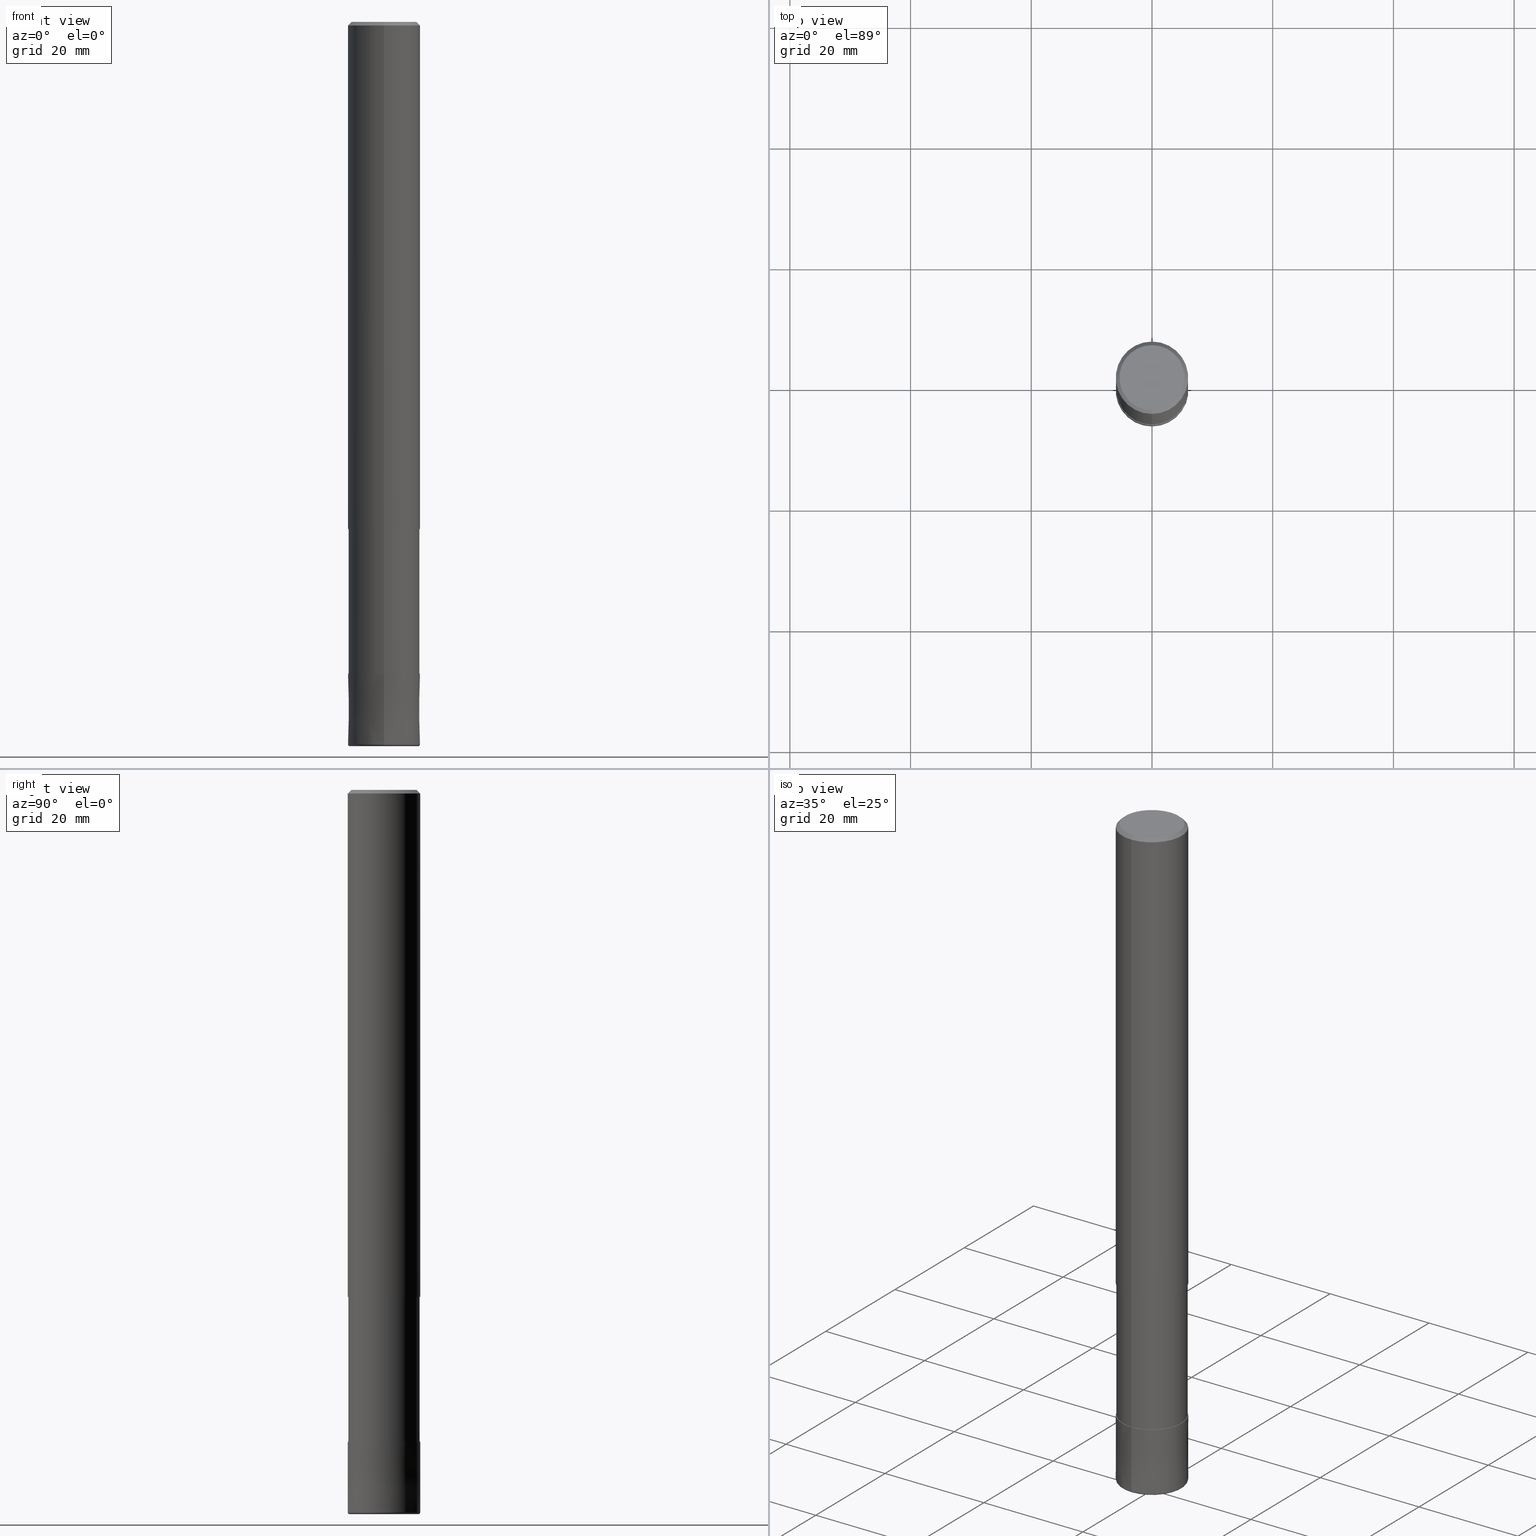
[diagram: canonical four-view strip — front | top / right | iso, engineering-drawing reading convention]
A machine part, canonical four-view strip (front | top / right | iso — engineering-drawing reading convention). The complete STEP part file that produces these views, byte-faithful:
ISO-10303-21;
HEADER;
FILE_DESCRIPTION(('no description'),'unknown implementation level');
FILE_NAME('CRRS4120-03-36-Huellk.stp','  ',('CIMSOURCE GmbH'),('CADClick - KiM GmbH - www.kimweb.de'),'unknown preprocess','ACIS','unknown authorization');
FILE_SCHEMA(('automotive_design'));
ENDSEC;
DATA;
#1=MECHANICAL_DESIGN_GEOMETRIC_PRESENTATION_REPRESENTATION(' ',(#14,#15,#16,#17,#18,#19,#20,#21,#22,#23,#24,#25,#26,#27,#28,#29,#30,#31,#32,#33,#34,#35,#36,#37,#38,#39,#40,#41,#42,#43,#44,#45,#46,#47,#48,#49,#50,#51,#52,#53,#54,#55,#56,#57,#58,#59,#60,#61,#62,#63,#64,#65,#66,#67,#68,#69,#70,#71,#72),#10);
#2=PRODUCT_DEFINITION_CONTEXT('',#73,'design');
#3=APPLICATION_PROTOCOL_DEFINITION('INTERNATIONAL STANDARD','automotive_design',1994,#73);
#4=PRODUCT_CATEGORY_RELATIONSHIP('NONE','NONE',#74,#75);
#5=SHAPE_DEFINITION_REPRESENTATION(#76,#77);
#6=PRODUCT_DEFINITION_CONTEXT('',#78,'design');
#7=APPLICATION_PROTOCOL_DEFINITION('INTERNATIONAL STANDARD','automotive_design',1994,#78);
#8=PRODUCT_CATEGORY_RELATIONSHIP('NONE','NONE',#79,#80);
#9=SHAPE_DEFINITION_REPRESENTATION(#81,#82);
#10= (GEOMETRIC_REPRESENTATION_CONTEXT(3)GLOBAL_UNCERTAINTY_ASSIGNED_CONTEXT((#85))GLOBAL_UNIT_ASSIGNED_CONTEXT((#87,#88,#89))REPRESENTATION_CONTEXT('NONE','WORKSPACE'));
#14=STYLED_ITEM('',(#91),#92);
#15=STYLED_ITEM('',(#93),#94);
#16=STYLED_ITEM('',(#95),#96);
#17=STYLED_ITEM('',(#97),#98);
#18=STYLED_ITEM('',(#99),#100);
#19=STYLED_ITEM('',(#101),#102);
#20=STYLED_ITEM('',(#103),#104);
#21=STYLED_ITEM('',(#105),#106);
#22=STYLED_ITEM('',(#107),#108);
#23=STYLED_ITEM('',(#109),#110);
#24=STYLED_ITEM('',(#111),#112);
#25=STYLED_ITEM('',(#113),#114);
#26=STYLED_ITEM('',(#115),#116);
#27=STYLED_ITEM('',(#117),#118);
#28=STYLED_ITEM('',(#119),#120);
#29=STYLED_ITEM('',(#121),#122);
#30=STYLED_ITEM('',(#123),#124);
#31=STYLED_ITEM('',(#125),#126);
#32=STYLED_ITEM('',(#127),#128);
#33=STYLED_ITEM('',(#129),#130);
#34=STYLED_ITEM('',(#131),#132);
#35=STYLED_ITEM('',(#133),#134);
#36=STYLED_ITEM('',(#135),#136);
#37=STYLED_ITEM('',(#137),#138);
#38=STYLED_ITEM('',(#139),#140);
#39=STYLED_ITEM('',(#141),#142);
#40=STYLED_ITEM('',(#143),#144);
#41=STYLED_ITEM('',(#145),#146);
#42=STYLED_ITEM('',(#147),#148);
#43=STYLED_ITEM('',(#149),#150);
#44=STYLED_ITEM('',(#151),#152);
#45=STYLED_ITEM('',(#153),#154);
#46=STYLED_ITEM('',(#155),#156);
#47=STYLED_ITEM('',(#157),#158);
#48=STYLED_ITEM('',(#159),#160);
#49=STYLED_ITEM('',(#161),#162);
#50=STYLED_ITEM('',(#163),#164);
#51=STYLED_ITEM('',(#165),#166);
#52=STYLED_ITEM('',(#167),#168);
#53=STYLED_ITEM('',(#169),#170);
#54=STYLED_ITEM('',(#171),#172);
#55=STYLED_ITEM('',(#173),#174);
#56=STYLED_ITEM('',(#175),#176);
#57=STYLED_ITEM('',(#177),#178);
#58=STYLED_ITEM('',(#179),#180);
#59=STYLED_ITEM('',(#181),#182);
#60=STYLED_ITEM('',(#183),#184);
#61=STYLED_ITEM('',(#185),#186);
#62=STYLED_ITEM('',(#187),#188);
#63=STYLED_ITEM('',(#189),#190);
#64=STYLED_ITEM('',(#191),#192);
#65=STYLED_ITEM('',(#193),#194);
#66=STYLED_ITEM('',(#195),#196);
#67=STYLED_ITEM('',(#197),#198);
#68=STYLED_ITEM('',(#199),#200);
#69=STYLED_ITEM('',(#201),#202);
#70=STYLED_ITEM('',(#203),#204);
#71=STYLED_ITEM('',(#205),#206);
#72=STYLED_ITEM('',(#207),#208);
#73=APPLICATION_CONTEXT(' ');
#74=PRODUCT_CATEGORY('part','NONE');
#75=PRODUCT_RELATED_PRODUCT_CATEGORY('detail',' ',(#209));
#76=PRODUCT_DEFINITION_SHAPE('NONE','NONE',#210);
#77=ADVANCED_BREP_SHAPE_REPRESENTATION('1',(#146,#211),#10);
#78=APPLICATION_CONTEXT(' ');
#79=PRODUCT_CATEGORY('part','NONE');
#80=PRODUCT_RELATED_PRODUCT_CATEGORY('detail',' ',(#212));
#81=PRODUCT_DEFINITION_SHAPE('NONE','NONE',#213);
#82=ADVANCED_BREP_SHAPE_REPRESENTATION('2',(#140,#214),#10);
#85=UNCERTAINTY_MEASURE_WITH_UNIT(LENGTH_MEASURE(1.0E-006),#87,'','');
#87= (CONVERSION_BASED_UNIT('MILLIMETRE',#217)LENGTH_UNIT()NAMED_UNIT(#220));
#88= (NAMED_UNIT(#222)PLANE_ANGLE_UNIT()SI_UNIT($,.RADIAN.));
#89= (NAMED_UNIT(#222)SOLID_ANGLE_UNIT()SI_UNIT($,.STERADIAN.));
#91=PRESENTATION_STYLE_ASSIGNMENT((#228));
#92=VERTEX_POINT('',#229);
#93=PRESENTATION_STYLE_ASSIGNMENT((#230));
#94=EDGE_CURVE('',#116,#114,#231,.T.);
#95=PRESENTATION_STYLE_ASSIGNMENT((#232));
#96=EDGE_CURVE('',#172,#178,#233,.T.);
#97=PRESENTATION_STYLE_ASSIGNMENT((#234));
#98=EDGE_CURVE('',#200,#126,#235,.T.);
#99=PRESENTATION_STYLE_ASSIGNMENT((#236));
#100=EDGE_CURVE('',#200,#182,#237,.T.);
#101=PRESENTATION_STYLE_ASSIGNMENT((#238));
#102=EDGE_CURVE('',#188,#200,#239,.T.);
#103=PRESENTATION_STYLE_ASSIGNMENT((#240));
#104=VERTEX_POINT('',#241);
#105=PRESENTATION_STYLE_ASSIGNMENT((#242));
#106=ADVANCED_FACE('',(#243,#244),#245,.T.);
#107=PRESENTATION_STYLE_ASSIGNMENT((#246));
#108=EDGE_CURVE('',#164,#172,#247,.T.);
#109=PRESENTATION_STYLE_ASSIGNMENT((#248));
#110=EDGE_CURVE('',#134,#172,#249,.T.);
#111=PRESENTATION_STYLE_ASSIGNMENT((#250));
#112=EDGE_CURVE('',#162,#188,#251,.T.);
#113=PRESENTATION_STYLE_ASSIGNMENT((#252));
#114=VERTEX_POINT('',#253);
#115=PRESENTATION_STYLE_ASSIGNMENT((#254));
#116=VERTEX_POINT('',#255);
#117=PRESENTATION_STYLE_ASSIGNMENT((#256));
#118=EDGE_CURVE('',#182,#200,#257,.T.);
#119=PRESENTATION_STYLE_ASSIGNMENT((#258));
#120=ADVANCED_FACE('',(#259),#260,.T.);
#121=PRESENTATION_STYLE_ASSIGNMENT((#261));
#122=ADVANCED_FACE('',(#262),#263,.T.);
#123=PRESENTATION_STYLE_ASSIGNMENT((#264));
#124=EDGE_CURVE('',#92,#116,#265,.T.);
#125=PRESENTATION_STYLE_ASSIGNMENT((#266));
#126=VERTEX_POINT('',#267);
#127=PRESENTATION_STYLE_ASSIGNMENT((#268));
#128=ADVANCED_FACE('',(#269),#270,.T.);
#129=PRESENTATION_STYLE_ASSIGNMENT((#271));
#130=ADVANCED_FACE('',(#272),#273,.T.);
#131=PRESENTATION_STYLE_ASSIGNMENT((#274));
#132=ADVANCED_FACE('',(#275),#276,.T.);
#133=PRESENTATION_STYLE_ASSIGNMENT((#277));
#134=VERTEX_POINT('',#278);
#135=PRESENTATION_STYLE_ASSIGNMENT((#279));
#136=EDGE_CURVE('',#104,#134,#280,.T.);
#137=PRESENTATION_STYLE_ASSIGNMENT((#281));
#138=EDGE_CURVE('',#134,#104,#282,.T.);
#139=PRESENTATION_STYLE_ASSIGNMENT((#283));
#140=MANIFOLD_SOLID_BREP('2',#284);
#141=PRESENTATION_STYLE_ASSIGNMENT((#285));
#142=EDGE_CURVE('',#164,#170,#286,.T.);
#143=PRESENTATION_STYLE_ASSIGNMENT((#287));
#144=EDGE_CURVE('',#178,#172,#288,.T.);
#145=PRESENTATION_STYLE_ASSIGNMENT((#289));
#146=MANIFOLD_SOLID_BREP('1',#290);
#147=PRESENTATION_STYLE_ASSIGNMENT((#291));
#148=ADVANCED_FACE('',(#292),#293,.T.);
#149=PRESENTATION_STYLE_ASSIGNMENT((#294));
#150=VERTEX_POINT('',#295);
#151=PRESENTATION_STYLE_ASSIGNMENT((#296));
#152=EDGE_CURVE('',#204,#92,#297,.T.);
#153=PRESENTATION_STYLE_ASSIGNMENT((#298));
#154=EDGE_CURVE('',#178,#104,#299,.T.);
#155=PRESENTATION_STYLE_ASSIGNMENT((#300));
#156=EDGE_CURVE('',#170,#164,#301,.T.);
#157=PRESENTATION_STYLE_ASSIGNMENT((#302));
#158=ADVANCED_FACE('',(#303),#304,.T.);
#159=PRESENTATION_STYLE_ASSIGNMENT((#305));
#160=ADVANCED_FACE('',(#306),#307,.T.);
#161=PRESENTATION_STYLE_ASSIGNMENT((#308));
#162=VERTEX_POINT('',#309);
#163=PRESENTATION_STYLE_ASSIGNMENT((#310));
#164=VERTEX_POINT('',#311);
#165=PRESENTATION_STYLE_ASSIGNMENT((#312));
#166=ADVANCED_FACE('',(#313),#314,.T.);
#167=PRESENTATION_STYLE_ASSIGNMENT((#315));
#168=ADVANCED_FACE('',(#316),#317,.T.);
#169=PRESENTATION_STYLE_ASSIGNMENT((#318));
#170=VERTEX_POINT('',#319);
#171=PRESENTATION_STYLE_ASSIGNMENT((#320));
#172=VERTEX_POINT('',#321);
#173=PRESENTATION_STYLE_ASSIGNMENT((#322));
#174=ADVANCED_FACE('',(#323),#324,.T.);
#175=PRESENTATION_STYLE_ASSIGNMENT((#325));
#176=EDGE_CURVE('',#116,#92,#326,.T.);
#177=PRESENTATION_STYLE_ASSIGNMENT((#327));
#178=VERTEX_POINT('',#328);
#179=PRESENTATION_STYLE_ASSIGNMENT((#329));
#180=EDGE_CURVE('',#204,#114,#330,.T.);
#181=PRESENTATION_STYLE_ASSIGNMENT((#331));
#182=VERTEX_POINT('',#332);
#183=PRESENTATION_STYLE_ASSIGNMENT((#333));
#184=EDGE_CURVE('',#182,#162,#334,.T.);
#185=PRESENTATION_STYLE_ASSIGNMENT((#335));
#186=EDGE_CURVE('',#150,#182,#336,.T.);
#187=PRESENTATION_STYLE_ASSIGNMENT((#337));
#188=VERTEX_POINT('',#338);
#189=PRESENTATION_STYLE_ASSIGNMENT((#339));
#190=ADVANCED_FACE('',(#340),#341,.T.);
#191=PRESENTATION_STYLE_ASSIGNMENT((#342));
#192=EDGE_CURVE('',#126,#150,#343,.T.);
#193=PRESENTATION_STYLE_ASSIGNMENT((#344));
#194=EDGE_CURVE('',#188,#162,#345,.T.);
#195=PRESENTATION_STYLE_ASSIGNMENT((#346));
#196=EDGE_CURVE('',#178,#170,#347,.T.);
#197=PRESENTATION_STYLE_ASSIGNMENT((#348));
#198=EDGE_CURVE('',#114,#204,#349,.T.);
#199=PRESENTATION_STYLE_ASSIGNMENT((#350));
#200=VERTEX_POINT('',#351);
#201=PRESENTATION_STYLE_ASSIGNMENT((#352));
#202=ADVANCED_FACE('',(#353),#354,.T.);
#203=PRESENTATION_STYLE_ASSIGNMENT((#355));
#204=VERTEX_POINT('',#356);
#205=PRESENTATION_STYLE_ASSIGNMENT((#357));
#206=ADVANCED_FACE('',(#358),#359,.T.);
#207=PRESENTATION_STYLE_ASSIGNMENT((#360));
#208=EDGE_CURVE('',#150,#126,#361,.T.);
#209=PRODUCT('1','1','PART-1-DESC',(#362));
#210=PRODUCT_DEFINITION('NONE','NONE',#363,#2);
#211=AXIS2_PLACEMENT_3D('',#364,#365,#366);
#212=PRODUCT('2','2','PART-2-DESC',(#367));
#213=PRODUCT_DEFINITION('NONE','NONE',#368,#6);
#214=AXIS2_PLACEMENT_3D('',#369,#370,#371);
#217=LENGTH_MEASURE_WITH_UNIT(LENGTH_MEASURE(1.0),#372);
#220=DIMENSIONAL_EXPONENTS(1.0,0.0,0.0,0.0,0.0,0.0,0.0);
#222=DIMENSIONAL_EXPONENTS(0.0,0.0,0.0,0.0,0.0,0.0,0.0);
#228=POINT_STYLE(' ',#373,POSITIVE_LENGTH_MEASURE(1.0E-006),#374);
#229=CARTESIAN_POINT('',(0.0,5.90995,-108.0));
#230=CURVE_STYLE('',#375,POSITIVE_LENGTH_MEASURE(1.0E-006),#376);
#231=LINE('',#377,#378);
#232=CURVE_STYLE('',#379,POSITIVE_LENGTH_MEASURE(1.0E-006),#380);
#233=CIRCLE('',#381,6.0);
#234=CURVE_STYLE('',#382,POSITIVE_LENGTH_MEASURE(1.0E-006),#383);
#235=LINE('',#384,#385);
#236=CURVE_STYLE('',#386,POSITIVE_LENGTH_MEASURE(1.0E-006),#387);
#237=CIRCLE('',#388,6.0);
#238=CURVE_STYLE('',#389,POSITIVE_LENGTH_MEASURE(1.0E-006),#390);
#239=LINE('',#391,#392);
#240=POINT_STYLE(' ',#393,POSITIVE_LENGTH_MEASURE(1.0E-006),#394);
#241=CARTESIAN_POINT('',(6.98025621678755E-016,-5.7,-120.0));
#242=SURFACE_STYLE_USAGE(.BOTH.,#395);
#243=FACE_OUTER_BOUND('',#396,.T.);
#244=FACE_BOUND('',#397,.T.);
#245=PLANE('',#398);
#246=CURVE_STYLE('',#399,POSITIVE_LENGTH_MEASURE(1.0E-006),#400);
#247=LINE('',#401,#402);
#248=CURVE_STYLE('',#403,POSITIVE_LENGTH_MEASURE(1.0E-006),#404);
#249=CIRCLE('',#405,0.300000000000002);
#250=CURVE_STYLE('',#406,POSITIVE_LENGTH_MEASURE(1.0E-006),#407);
#251=CIRCLE('',#408,6.0);
#252=POINT_STYLE(' ',#409,POSITIVE_LENGTH_MEASURE(1.0E-006),#410);
#253=CARTESIAN_POINT('',(7.23736232077256E-016,-5.90995,-84.0));
#254=POINT_STYLE(' ',#411,POSITIVE_LENGTH_MEASURE(1.0E-006),#412);
#255=CARTESIAN_POINT('',(7.23736232077256E-016,-5.90995,-108.0));
#256=CURVE_STYLE('',#413,POSITIVE_LENGTH_MEASURE(1.0E-006),#414);
#257=CIRCLE('',#415,6.0);
#258=SURFACE_STYLE_USAGE(.BOTH.,#416);
#259=FACE_OUTER_BOUND('',#417,.T.);
#260=PLANE('',#418);
#261=SURFACE_STYLE_USAGE(.BOTH.,#419);
#262=FACE_OUTER_BOUND('',#420,.T.);
#263=CONICAL_SURFACE('',#421,5.7,0.785398163397453);
#264=CURVE_STYLE('',#422,POSITIVE_LENGTH_MEASURE(1.0E-006),#423);
#265=CIRCLE('',#424,5.90995);
#266=POINT_STYLE(' ',#425,POSITIVE_LENGTH_MEASURE(1.0E-006),#426);
#267=CARTESIAN_POINT('',(6.61287431064084E-016,-5.4,0.0));
#268=SURFACE_STYLE_USAGE(.BOTH.,#427);
#269=FACE_OUTER_BOUND('',#428,.T.);
#270=CONICAL_SURFACE('',#429,5.99995,8.5470085467805E-006);
#271=SURFACE_STYLE_USAGE(.BOTH.,#430);
#272=FACE_OUTER_BOUND('',#431,.T.);
#273=TOROIDAL_SURFACE('',#432,5.7,0.300000000000002);
#274=SURFACE_STYLE_USAGE(.BOTH.,#433);
#275=FACE_OUTER_BOUND('',#434,.T.);
#276=PLANE('',#435);
#277=POINT_STYLE(' ',#436,POSITIVE_LENGTH_MEASURE(1.0E-006),#437);
#278=CARTESIAN_POINT('',(0.0,5.7,-120.0));
#279=CURVE_STYLE('',#438,POSITIVE_LENGTH_MEASURE(1.0E-006),#439);
#280=CIRCLE('',#440,5.7);
#281=CURVE_STYLE('',#441,POSITIVE_LENGTH_MEASURE(1.0E-006),#442);
#282=CIRCLE('',#443,5.7);
#283=SURFACE_STYLE_USAGE(.BOTH.,#444);
#284=CLOSED_SHELL('',(#190,#148,#202,#128,#130,#132));
#285=CURVE_STYLE('',#445,POSITIVE_LENGTH_MEASURE(1.0E-006),#446);
#286=CIRCLE('',#447,5.9999);
#287=CURVE_STYLE('',#448,POSITIVE_LENGTH_MEASURE(1.0E-006),#449);
#288=CIRCLE('',#450,6.0);
#289=SURFACE_STYLE_USAGE(.BOTH.,#451);
#290=CLOSED_SHELL('',(#166,#158,#206,#106,#160,#122,#174,#168,#120));
#291=SURFACE_STYLE_USAGE(.BOTH.,#452);
#292=FACE_OUTER_BOUND('',#453,.T.);
#293=CONICAL_SURFACE('',#454,5.99995,8.5470085467805E-006);
#294=POINT_STYLE(' ',#455,POSITIVE_LENGTH_MEASURE(1.0E-006),#456);
#295=CARTESIAN_POINT('',(0.0,5.4,0.0));
#296=CURVE_STYLE('',#457,POSITIVE_LENGTH_MEASURE(1.0E-006),#458);
#297=LINE('',#459,#460);
#298=CURVE_STYLE('',#461,POSITIVE_LENGTH_MEASURE(1.0E-006),#462);
#299=CIRCLE('',#463,0.300000000000002);
#300=CURVE_STYLE('',#464,POSITIVE_LENGTH_MEASURE(1.0E-006),#465);
#301=CIRCLE('',#466,5.9999);
#302=SURFACE_STYLE_USAGE(.BOTH.,#467);
#303=FACE_OUTER_BOUND('',#468,.T.);
#304=CYLINDRICAL_SURFACE('',#469,6.0);
#305=SURFACE_STYLE_USAGE(.BOTH.,#470);
#306=FACE_OUTER_BOUND('',#471,.T.);
#307=PLANE('',#472);
#308=POINT_STYLE(' ',#473,POSITIVE_LENGTH_MEASURE(1.0E-006),#474);
#309=CARTESIAN_POINT('',(0.0,6.0,-84.0));
#310=POINT_STYLE(' ',#475,POSITIVE_LENGTH_MEASURE(1.0E-006),#476);
#311=CARTESIAN_POINT('',(0.0,5.9999,-108.0));
#312=SURFACE_STYLE_USAGE(.BOTH.,#477);
#313=FACE_OUTER_BOUND('',#478,.T.);
#314=CYLINDRICAL_SURFACE('',#479,5.90995);
#315=SURFACE_STYLE_USAGE(.BOTH.,#480);
#316=FACE_OUTER_BOUND('',#481,.T.);
#317=CYLINDRICAL_SURFACE('',#482,5.90995);
#318=POINT_STYLE(' ',#483,POSITIVE_LENGTH_MEASURE(1.0E-006),#484);
#319=CARTESIAN_POINT('',(7.34751566229888E-016,-5.9999,-108.0));
#320=POINT_STYLE(' ',#485,POSITIVE_LENGTH_MEASURE(1.0E-006),#486);
#321=CARTESIAN_POINT('',(0.0,6.0,-119.7));
#322=SURFACE_STYLE_USAGE(.BOTH.,#487);
#323=FACE_OUTER_BOUND('',#488,.T.);
#324=CYLINDRICAL_SURFACE('',#489,6.0);
#325=CURVE_STYLE('',#490,POSITIVE_LENGTH_MEASURE(1.0E-006),#491);
#326=CIRCLE('',#492,5.90995);
#327=POINT_STYLE(' ',#493,POSITIVE_LENGTH_MEASURE(1.0E-006),#494);
#328=CARTESIAN_POINT('',(7.34763812293427E-016,-6.0,-119.7));
#329=CURVE_STYLE('',#495,POSITIVE_LENGTH_MEASURE(1.0E-006),#496);
#330=CIRCLE('',#497,5.90995);
#331=POINT_STYLE(' ',#498,POSITIVE_LENGTH_MEASURE(1.0E-006),#499);
#332=CARTESIAN_POINT('',(0.0,6.0,-0.599999999999994));
#333=CURVE_STYLE('',#500,POSITIVE_LENGTH_MEASURE(1.0E-006),#501);
#334=LINE('',#502,#503);
#335=CURVE_STYLE('',#504,POSITIVE_LENGTH_MEASURE(1.0E-006),#505);
#336=LINE('',#506,#507);
#337=POINT_STYLE(' ',#508,POSITIVE_LENGTH_MEASURE(1.0E-006),#509);
#338=CARTESIAN_POINT('',(7.34763812293426E-016,-6.0,-84.0));
#339=SURFACE_STYLE_USAGE(.BOTH.,#510);
#340=FACE_OUTER_BOUND('',#511,.T.);
#341=TOROIDAL_SURFACE('',#512,5.7,0.300000000000002);
#342=CURVE_STYLE('',#513,POSITIVE_LENGTH_MEASURE(1.0E-006),#514);
#343=CIRCLE('',#515,5.4);
#344=CURVE_STYLE('',#516,POSITIVE_LENGTH_MEASURE(1.0E-006),#517);
#345=CIRCLE('',#518,6.0);
#346=CURVE_STYLE('',#519,POSITIVE_LENGTH_MEASURE(1.0E-006),#520);
#347=LINE('',#521,#522);
#348=CURVE_STYLE('',#523,POSITIVE_LENGTH_MEASURE(1.0E-006),#524);
#349=CIRCLE('',#525,5.90995);
#350=POINT_STYLE(' ',#526,POSITIVE_LENGTH_MEASURE(1.0E-006),#527);
#351=CARTESIAN_POINT('',(7.34763812293426E-016,-6.0,-0.599999999999994));
#352=SURFACE_STYLE_USAGE(.BOTH.,#528);
#353=FACE_OUTER_BOUND('',#529,.T.);
#354=PLANE('',#530);
#355=POINT_STYLE(' ',#531,POSITIVE_LENGTH_MEASURE(1.0E-006),#532);
#356=CARTESIAN_POINT('',(0.0,5.90995,-84.0));
#357=SURFACE_STYLE_USAGE(.BOTH.,#533);
#358=FACE_OUTER_BOUND('',#534,.T.);
#359=CONICAL_SURFACE('',#535,5.7,0.785398163397453);
#360=CURVE_STYLE('',#536,POSITIVE_LENGTH_MEASURE(1.0E-006),#537);
#361=CIRCLE('',#538,5.4);
#362=PRODUCT_CONTEXT('',#73,'mechanical');
#363=PRODUCT_DEFINITION_FORMATION_WITH_SPECIFIED_SOURCE(' ','NONE',#209,.NOT_KNOWN.);
#364=CARTESIAN_POINT('',(0.0,0.0,0.0));
#365=DIRECTION('',(0.0,0.0,1.0));
#366=DIRECTION('',(1.0,0.0,0.0));
#367=PRODUCT_CONTEXT('',#78,'mechanical');
#368=PRODUCT_DEFINITION_FORMATION_WITH_SPECIFIED_SOURCE(' ','NONE',#212,.NOT_KNOWN.);
#369=CARTESIAN_POINT('',(0.0,0.0,0.0));
#370=DIRECTION('',(0.0,0.0,1.0));
#371=DIRECTION('',(1.0,0.0,0.0));
#372= (NAMED_UNIT(#220)LENGTH_UNIT()SI_UNIT(.MILLI.,.METRE.));
#373=PRE_DEFINED_MARKER('');
#374=COLOUR_RGB('',0.498039215803146,0.498039215803146,0.498039215803146);
#375=DRAUGHTING_PRE_DEFINED_CURVE_FONT('continuous');
#376=COLOUR_RGB('',0.498039215803146,0.498039215803146,0.498039215803146);
#377=CARTESIAN_POINT('',(7.23736232077256E-016,-5.90995,-96.0));
#378=VECTOR('',#540,1.0);
#379=DRAUGHTING_PRE_DEFINED_CURVE_FONT('continuous');
#380=COLOUR_RGB('',0.800000011920929,0.800000011920929,0.800000011920929);
#381=AXIS2_PLACEMENT_3D('',#541,#542,#543);
#382=DRAUGHTING_PRE_DEFINED_CURVE_FONT('continuous');
#383=COLOUR_RGB('',0.498039215803146,0.498039215803146,0.498039215803146);
#384=CARTESIAN_POINT('',(6.98025621678755E-016,-5.7,-0.299999999999997));
#385=VECTOR('',#544,1.0);
#386=DRAUGHTING_PRE_DEFINED_CURVE_FONT('continuous');
#387=COLOUR_RGB('',0.498039215803146,0.498039215803146,0.498039215803146);
#388=AXIS2_PLACEMENT_3D('',#545,#546,#547);
#389=DRAUGHTING_PRE_DEFINED_CURVE_FONT('continuous');
#390=COLOUR_RGB('',0.498039215803146,0.498039215803146,0.498039215803146);
#391=CARTESIAN_POINT('',(7.34763812293426E-016,-6.0,-42.3));
#392=VECTOR('',#548,1.0);
#393=PRE_DEFINED_MARKER('');
#394=COLOUR_RGB('',0.800000011920929,0.800000011920929,0.800000011920929);
#395=SURFACE_SIDE_STYLE('',(#549));
#396=EDGE_LOOP('',(#550,#551));
#397=EDGE_LOOP('',(#552,#553));
#398=AXIS2_PLACEMENT_3D('',#554,#555,#556);
#399=DRAUGHTING_PRE_DEFINED_CURVE_FONT('continuous');
#400=COLOUR_RGB('',0.800000011920929,0.800000011920929,0.800000011920929);
#401=CARTESIAN_POINT('',(-7.34757689261657E-016,5.99995,-113.85));
#402=VECTOR('',#557,1.0);
#403=DRAUGHTING_PRE_DEFINED_CURVE_FONT('continuous');
#404=COLOUR_RGB('',0.800000011920929,0.800000011920929,0.800000011920929);
#405=AXIS2_PLACEMENT_3D('',#558,#559,#560);
#406=DRAUGHTING_PRE_DEFINED_CURVE_FONT('continuous');
#407=COLOUR_RGB('',0.498039215803146,0.498039215803146,0.498039215803146);
#408=AXIS2_PLACEMENT_3D('',#561,#562,#563);
#409=PRE_DEFINED_MARKER('');
#410=COLOUR_RGB('',0.498039215803146,0.498039215803146,0.498039215803146);
#411=PRE_DEFINED_MARKER('');
#412=COLOUR_RGB('',0.498039215803146,0.498039215803146,0.498039215803146);
#413=DRAUGHTING_PRE_DEFINED_CURVE_FONT('continuous');
#414=COLOUR_RGB('',0.498039215803146,0.498039215803146,0.498039215803146);
#415=AXIS2_PLACEMENT_3D('',#564,#565,#566);
#416=SURFACE_SIDE_STYLE('',(#567));
#417=EDGE_LOOP('',(#568,#569));
#418=AXIS2_PLACEMENT_3D('',#570,#571,#572);
#419=SURFACE_SIDE_STYLE('',(#573));
#420=EDGE_LOOP('',(#574,#575,#576,#577));
#421=AXIS2_PLACEMENT_3D('',#578,#579,#580);
#422=DRAUGHTING_PRE_DEFINED_CURVE_FONT('continuous');
#423=COLOUR_RGB('',0.498039215803146,0.498039215803146,0.498039215803146);
#424=AXIS2_PLACEMENT_3D('',#581,#582,#583);
#425=PRE_DEFINED_MARKER('');
#426=COLOUR_RGB('',0.498039215803146,0.498039215803146,0.498039215803146);
#427=SURFACE_SIDE_STYLE('',(#584));
#428=EDGE_LOOP('',(#585,#586,#587,#588));
#429=AXIS2_PLACEMENT_3D('',#589,#590,#591);
#430=SURFACE_SIDE_STYLE('',(#592));
#431=EDGE_LOOP('',(#593,#594,#595,#596));
#432=AXIS2_PLACEMENT_3D('',#597,#598,#599);
#433=SURFACE_SIDE_STYLE('',(#600));
#434=EDGE_LOOP('',(#601,#602));
#435=AXIS2_PLACEMENT_3D('',#603,#604,#605);
#436=PRE_DEFINED_MARKER('');
#437=COLOUR_RGB('',0.800000011920929,0.800000011920929,0.800000011920929);
#438=DRAUGHTING_PRE_DEFINED_CURVE_FONT('continuous');
#439=COLOUR_RGB('',0.800000011920929,0.800000011920929,0.800000011920929);
#440=AXIS2_PLACEMENT_3D('',#606,#607,#608);
#441=DRAUGHTING_PRE_DEFINED_CURVE_FONT('continuous');
#442=COLOUR_RGB('',0.800000011920929,0.800000011920929,0.800000011920929);
#443=AXIS2_PLACEMENT_3D('',#609,#610,#611);
#444=SURFACE_SIDE_STYLE('',(#612));
#445=DRAUGHTING_PRE_DEFINED_CURVE_FONT('continuous');
#446=COLOUR_RGB('',0.800000011920929,0.800000011920929,0.800000011920929);
#447=AXIS2_PLACEMENT_3D('',#613,#614,#615);
#448=DRAUGHTING_PRE_DEFINED_CURVE_FONT('continuous');
#449=COLOUR_RGB('',0.800000011920929,0.800000011920929,0.800000011920929);
#450=AXIS2_PLACEMENT_3D('',#616,#617,#618);
#451=SURFACE_SIDE_STYLE('',(#619));
#452=SURFACE_SIDE_STYLE('',(#620));
#453=EDGE_LOOP('',(#621,#622,#623,#624));
#454=AXIS2_PLACEMENT_3D('',#625,#626,#627);
#455=PRE_DEFINED_MARKER('');
#456=COLOUR_RGB('',0.498039215803146,0.498039215803146,0.498039215803146);
#457=DRAUGHTING_PRE_DEFINED_CURVE_FONT('continuous');
#458=COLOUR_RGB('',0.498039215803146,0.498039215803146,0.498039215803146);
#459=CARTESIAN_POINT('',(-7.23736232077256E-016,5.90995,-96.0));
#460=VECTOR('',#628,1.0);
#461=DRAUGHTING_PRE_DEFINED_CURVE_FONT('continuous');
#462=COLOUR_RGB('',0.800000011920929,0.800000011920929,0.800000011920929);
#463=AXIS2_PLACEMENT_3D('',#629,#630,#631);
#464=DRAUGHTING_PRE_DEFINED_CURVE_FONT('continuous');
#465=COLOUR_RGB('',0.800000011920929,0.800000011920929,0.800000011920929);
#466=AXIS2_PLACEMENT_3D('',#632,#633,#634);
#467=SURFACE_SIDE_STYLE('',(#635));
#468=EDGE_LOOP('',(#636,#637,#638,#639));
#469=AXIS2_PLACEMENT_3D('',#640,#641,#642);
#470=SURFACE_SIDE_STYLE('',(#643));
#471=EDGE_LOOP('',(#644,#645));
#472=AXIS2_PLACEMENT_3D('',#646,#647,#648);
#473=PRE_DEFINED_MARKER('');
#474=COLOUR_RGB('',0.498039215803146,0.498039215803146,0.498039215803146);
#475=PRE_DEFINED_MARKER('');
#476=COLOUR_RGB('',0.800000011920929,0.800000011920929,0.800000011920929);
#477=SURFACE_SIDE_STYLE('',(#649));
#478=EDGE_LOOP('',(#650,#651,#652,#653));
#479=AXIS2_PLACEMENT_3D('',#654,#655,#656);
#480=SURFACE_SIDE_STYLE('',(#657));
#481=EDGE_LOOP('',(#658,#659,#660,#661));
#482=AXIS2_PLACEMENT_3D('',#662,#663,#664);
#483=PRE_DEFINED_MARKER('');
#484=COLOUR_RGB('',0.800000011920929,0.800000011920929,0.800000011920929);
#485=PRE_DEFINED_MARKER('');
#486=COLOUR_RGB('',0.800000011920929,0.800000011920929,0.800000011920929);
#487=SURFACE_SIDE_STYLE('',(#665));
#488=EDGE_LOOP('',(#666,#667,#668,#669));
#489=AXIS2_PLACEMENT_3D('',#670,#671,#672);
#490=DRAUGHTING_PRE_DEFINED_CURVE_FONT('continuous');
#491=COLOUR_RGB('',0.498039215803146,0.498039215803146,0.498039215803146);
#492=AXIS2_PLACEMENT_3D('',#673,#674,#675);
#493=PRE_DEFINED_MARKER('');
#494=COLOUR_RGB('',0.800000011920929,0.800000011920929,0.800000011920929);
#495=DRAUGHTING_PRE_DEFINED_CURVE_FONT('continuous');
#496=COLOUR_RGB('',0.498039215803146,0.498039215803146,0.498039215803146);
#497=AXIS2_PLACEMENT_3D('',#676,#677,#678);
#498=PRE_DEFINED_MARKER('');
#499=COLOUR_RGB('',0.498039215803146,0.498039215803146,0.498039215803146);
#500=DRAUGHTING_PRE_DEFINED_CURVE_FONT('continuous');
#501=COLOUR_RGB('',0.498039215803146,0.498039215803146,0.498039215803146);
#502=CARTESIAN_POINT('',(-7.34763812293426E-016,6.0,-42.3));
#503=VECTOR('',#679,1.0);
#504=DRAUGHTING_PRE_DEFINED_CURVE_FONT('continuous');
#505=COLOUR_RGB('',0.498039215803146,0.498039215803146,0.498039215803146);
#506=CARTESIAN_POINT('',(-6.98025621678755E-016,5.7,-0.299999999999997));
#507=VECTOR('',#680,1.0);
#508=PRE_DEFINED_MARKER('');
#509=COLOUR_RGB('',0.498039215803146,0.498039215803146,0.498039215803146);
#510=SURFACE_SIDE_STYLE('',(#681));
#511=EDGE_LOOP('',(#682,#683,#684,#685));
#512=AXIS2_PLACEMENT_3D('',#686,#687,#688);
#513=DRAUGHTING_PRE_DEFINED_CURVE_FONT('continuous');
#514=COLOUR_RGB('',0.498039215803146,0.498039215803146,0.498039215803146);
#515=AXIS2_PLACEMENT_3D('',#689,#690,#691);
#516=DRAUGHTING_PRE_DEFINED_CURVE_FONT('continuous');
#517=COLOUR_RGB('',0.498039215803146,0.498039215803146,0.498039215803146);
#518=AXIS2_PLACEMENT_3D('',#692,#693,#694);
#519=DRAUGHTING_PRE_DEFINED_CURVE_FONT('continuous');
#520=COLOUR_RGB('',0.800000011920929,0.800000011920929,0.800000011920929);
#521=CARTESIAN_POINT('',(7.34757689261657E-016,-5.99995,-113.85));
#522=VECTOR('',#695,1.0);
#523=DRAUGHTING_PRE_DEFINED_CURVE_FONT('continuous');
#524=COLOUR_RGB('',0.498039215803146,0.498039215803146,0.498039215803146);
#525=AXIS2_PLACEMENT_3D('',#696,#697,#698);
#526=PRE_DEFINED_MARKER('');
#527=COLOUR_RGB('',0.498039215803146,0.498039215803146,0.498039215803146);
#528=SURFACE_SIDE_STYLE('',(#699));
#529=EDGE_LOOP('',(#700,#701));
#530=AXIS2_PLACEMENT_3D('',#702,#703,#704);
#531=PRE_DEFINED_MARKER('');
#532=COLOUR_RGB('',0.498039215803146,0.498039215803146,0.498039215803146);
#533=SURFACE_SIDE_STYLE('',(#705));
#534=EDGE_LOOP('',(#706,#707,#708,#709));
#535=AXIS2_PLACEMENT_3D('',#710,#711,#712);
#536=DRAUGHTING_PRE_DEFINED_CURVE_FONT('continuous');
#537=COLOUR_RGB('',0.498039215803146,0.498039215803146,0.498039215803146);
#538=AXIS2_PLACEMENT_3D('',#713,#714,#715);
#540=DIRECTION('',(-0.0,-0.0,1.0));
#541=CARTESIAN_POINT('',(0.0,0.0,-119.7));
#542=DIRECTION('',(0.0,0.0,-1.0));
#543=DIRECTION('',(0.0,1.0,0.0));
#544=DIRECTION('',(-8.65927457071939E-017,0.707106781186551,0.707106781186544));
#545=CARTESIAN_POINT('',(0.0,0.0,-0.599999999999994));
#546=DIRECTION('',(0.0,0.0,-1.0));
#547=DIRECTION('',(0.0,1.0,0.0));
#548=DIRECTION('',(-0.0,-0.0,1.0));
#549=SURFACE_STYLE_FILL_AREA(#716);
#550=ORIENTED_EDGE('',*,*,#112,.T.);
#551=ORIENTED_EDGE('',*,*,#194,.T.);
#552=ORIENTED_EDGE('',*,*,#180,.F.);
#553=ORIENTED_EDGE('',*,*,#198,.F.);
#554=CARTESIAN_POINT('',(0.0,3.0,-84.0));
#555=DIRECTION('',(0.0,0.0,-1.0));
#556=DIRECTION('',(0.0,1.0,0.0));
#557=DIRECTION('',(-1.04667209724341E-021,8.54700854667644E-006,-0.999999999963474));
#558=CARTESIAN_POINT('',(-6.98025621678755E-016,5.7,-119.7));
#559=DIRECTION('',(1.0,1.22460635382238E-016,0.0));
#560=DIRECTION('',(-1.22460635382238E-016,1.0,0.0));
#561=CARTESIAN_POINT('',(0.0,0.0,-84.0));
#562=DIRECTION('',(0.0,0.0,-1.0));
#563=DIRECTION('',(0.0,1.0,0.0));
#564=CARTESIAN_POINT('',(0.0,0.0,-0.599999999999994));
#565=DIRECTION('',(0.0,0.0,-1.0));
#566=DIRECTION('',(0.0,1.0,0.0));
#567=SURFACE_STYLE_FILL_AREA(#717);
#568=ORIENTED_EDGE('',*,*,#124,.T.);
#569=ORIENTED_EDGE('',*,*,#176,.T.);
#570=CARTESIAN_POINT('',(0.0,2.954975,-108.0));
#571=DIRECTION('',(0.0,0.0,-1.0));
#572=DIRECTION('',(0.0,1.0,0.0));
#573=SURFACE_STYLE_FILL_AREA(#718);
#574=ORIENTED_EDGE('',*,*,#186,.T.);
#575=ORIENTED_EDGE('',*,*,#100,.F.);
#576=ORIENTED_EDGE('',*,*,#98,.T.);
#577=ORIENTED_EDGE('',*,*,#192,.T.);
#578=CARTESIAN_POINT('',(0.0,0.0,-0.299999999999997));
#579=DIRECTION('',(0.0,-0.0,-1.0));
#580=DIRECTION('',(0.0,1.0,0.0));
#581=CARTESIAN_POINT('',(0.0,0.0,-108.0));
#582=DIRECTION('',(0.0,0.0,-1.0));
#583=DIRECTION('',(0.0,1.0,0.0));
#584=SURFACE_STYLE_FILL_AREA(#719);
#585=ORIENTED_EDGE('',*,*,#108,.T.);
#586=ORIENTED_EDGE('',*,*,#144,.F.);
#587=ORIENTED_EDGE('',*,*,#196,.T.);
#588=ORIENTED_EDGE('',*,*,#156,.T.);
#589=CARTESIAN_POINT('',(0.0,0.0,-113.85));
#590=DIRECTION('',(0.0,-0.0,-1.0));
#591=DIRECTION('',(0.0,1.0,0.0));
#592=SURFACE_STYLE_FILL_AREA(#720);
#593=ORIENTED_EDGE('',*,*,#154,.T.);
#594=ORIENTED_EDGE('',*,*,#138,.F.);
#595=ORIENTED_EDGE('',*,*,#110,.T.);
#596=ORIENTED_EDGE('',*,*,#96,.T.);
#597=CARTESIAN_POINT('',(0.0,0.0,-119.7));
#598=DIRECTION('',(0.0,0.0,-1.0));
#599=DIRECTION('',(0.0,-1.0,0.0));
#600=SURFACE_STYLE_FILL_AREA(#721);
#601=ORIENTED_EDGE('',*,*,#138,.T.);
#602=ORIENTED_EDGE('',*,*,#136,.T.);
#603=CARTESIAN_POINT('',(0.0,2.85,-120.0));
#604=DIRECTION('',(0.0,0.0,-1.0));
#605=DIRECTION('',(0.0,1.0,0.0));
#606=CARTESIAN_POINT('',(0.0,0.0,-120.0));
#607=DIRECTION('',(0.0,0.0,-1.0));
#608=DIRECTION('',(0.0,1.0,0.0));
#609=CARTESIAN_POINT('',(0.0,0.0,-120.0));
#610=DIRECTION('',(0.0,0.0,-1.0));
#611=DIRECTION('',(0.0,1.0,0.0));
#612=SURFACE_STYLE_FILL_AREA(#722);
#613=CARTESIAN_POINT('',(0.0,0.0,-108.0));
#614=DIRECTION('',(0.0,0.0,-1.0));
#615=DIRECTION('',(0.0,1.0,0.0));
#616=CARTESIAN_POINT('',(0.0,0.0,-119.7));
#617=DIRECTION('',(0.0,0.0,-1.0));
#618=DIRECTION('',(0.0,1.0,0.0));
#619=SURFACE_STYLE_FILL_AREA(#723);
#620=SURFACE_STYLE_FILL_AREA(#724);
#621=ORIENTED_EDGE('',*,*,#108,.F.);
#622=ORIENTED_EDGE('',*,*,#142,.T.);
#623=ORIENTED_EDGE('',*,*,#196,.F.);
#624=ORIENTED_EDGE('',*,*,#96,.F.);
#625=CARTESIAN_POINT('',(0.0,0.0,-113.85));
#626=DIRECTION('',(0.0,-0.0,-1.0));
#627=DIRECTION('',(0.0,1.0,0.0));
#628=DIRECTION('',(0.0,0.0,-1.0));
#629=CARTESIAN_POINT('',(6.98025621678755E-016,-5.7,-119.7));
#630=DIRECTION('',(1.0,1.22460635382238E-016,0.0));
#631=DIRECTION('',(1.22460635382238E-016,-1.0,-0.0));
#632=CARTESIAN_POINT('',(0.0,0.0,-108.0));
#633=DIRECTION('',(0.0,0.0,-1.0));
#634=DIRECTION('',(0.0,1.0,0.0));
#635=SURFACE_STYLE_FILL_AREA(#725);
#636=ORIENTED_EDGE('',*,*,#184,.F.);
#637=ORIENTED_EDGE('',*,*,#118,.T.);
#638=ORIENTED_EDGE('',*,*,#102,.F.);
#639=ORIENTED_EDGE('',*,*,#112,.F.);
#640=CARTESIAN_POINT('',(0.0,0.0,-42.3));
#641=DIRECTION('',(-0.0,-0.0,1.0));
#642=DIRECTION('',(0.0,1.0,0.0));
#643=SURFACE_STYLE_FILL_AREA(#726);
#644=ORIENTED_EDGE('',*,*,#208,.F.);
#645=ORIENTED_EDGE('',*,*,#192,.F.);
#646=CARTESIAN_POINT('',(0.0,2.7,0.0));
#647=DIRECTION('',(-0.0,0.0,1.0));
#648=DIRECTION('',(0.0,-1.0,0.0));
#649=SURFACE_STYLE_FILL_AREA(#727);
#650=ORIENTED_EDGE('',*,*,#152,.F.);
#651=ORIENTED_EDGE('',*,*,#180,.T.);
#652=ORIENTED_EDGE('',*,*,#94,.F.);
#653=ORIENTED_EDGE('',*,*,#124,.F.);
#654=CARTESIAN_POINT('',(0.0,0.0,-96.0));
#655=DIRECTION('',(-0.0,-0.0,1.0));
#656=DIRECTION('',(0.0,1.0,0.0));
#657=SURFACE_STYLE_FILL_AREA(#728);
#658=ORIENTED_EDGE('',*,*,#152,.T.);
#659=ORIENTED_EDGE('',*,*,#176,.F.);
#660=ORIENTED_EDGE('',*,*,#94,.T.);
#661=ORIENTED_EDGE('',*,*,#198,.T.);
#662=CARTESIAN_POINT('',(0.0,0.0,-96.0));
#663=DIRECTION('',(-0.0,-0.0,1.0));
#664=DIRECTION('',(0.0,1.0,0.0));
#665=SURFACE_STYLE_FILL_AREA(#729);
#666=ORIENTED_EDGE('',*,*,#184,.T.);
#667=ORIENTED_EDGE('',*,*,#194,.F.);
#668=ORIENTED_EDGE('',*,*,#102,.T.);
#669=ORIENTED_EDGE('',*,*,#100,.T.);
#670=CARTESIAN_POINT('',(0.0,0.0,-42.3));
#671=DIRECTION('',(-0.0,-0.0,1.0));
#672=DIRECTION('',(0.0,1.0,0.0));
#673=CARTESIAN_POINT('',(0.0,0.0,-108.0));
#674=DIRECTION('',(0.0,0.0,-1.0));
#675=DIRECTION('',(0.0,1.0,0.0));
#676=CARTESIAN_POINT('',(0.0,0.0,-84.0));
#677=DIRECTION('',(0.0,0.0,-1.0));
#678=DIRECTION('',(0.0,1.0,0.0));
#679=DIRECTION('',(0.0,0.0,-1.0));
#680=DIRECTION('',(-8.65927457071939E-017,0.707106781186551,-0.707106781186544));
#681=SURFACE_STYLE_FILL_AREA(#730);
#682=ORIENTED_EDGE('',*,*,#154,.F.);
#683=ORIENTED_EDGE('',*,*,#144,.T.);
#684=ORIENTED_EDGE('',*,*,#110,.F.);
#685=ORIENTED_EDGE('',*,*,#136,.F.);
#686=CARTESIAN_POINT('',(0.0,0.0,-119.7));
#687=DIRECTION('',(0.0,0.0,-1.0));
#688=DIRECTION('',(0.0,-1.0,0.0));
#689=CARTESIAN_POINT('',(0.0,0.0,0.0));
#690=DIRECTION('',(0.0,0.0,-1.0));
#691=DIRECTION('',(0.0,1.0,0.0));
#692=CARTESIAN_POINT('',(0.0,0.0,-84.0));
#693=DIRECTION('',(0.0,0.0,-1.0));
#694=DIRECTION('',(0.0,1.0,0.0));
#695=DIRECTION('',(-1.04667209724341E-021,8.54700854667644E-006,0.999999999963474));
#696=CARTESIAN_POINT('',(0.0,0.0,-84.0));
#697=DIRECTION('',(0.0,0.0,-1.0));
#698=DIRECTION('',(0.0,1.0,0.0));
#699=SURFACE_STYLE_FILL_AREA(#731);
#700=ORIENTED_EDGE('',*,*,#142,.F.);
#701=ORIENTED_EDGE('',*,*,#156,.F.);
#702=CARTESIAN_POINT('',(0.0,2.99995,-108.0));
#703=DIRECTION('',(-0.0,0.0,1.0));
#704=DIRECTION('',(0.0,-1.0,0.0));
#705=SURFACE_STYLE_FILL_AREA(#732);
#706=ORIENTED_EDGE('',*,*,#186,.F.);
#707=ORIENTED_EDGE('',*,*,#208,.T.);
#708=ORIENTED_EDGE('',*,*,#98,.F.);
#709=ORIENTED_EDGE('',*,*,#118,.F.);
#710=CARTESIAN_POINT('',(0.0,0.0,-0.299999999999997));
#711=DIRECTION('',(0.0,-0.0,-1.0));
#712=DIRECTION('',(0.0,1.0,0.0));
#713=CARTESIAN_POINT('',(0.0,0.0,0.0));
#714=DIRECTION('',(0.0,0.0,-1.0));
#715=DIRECTION('',(0.0,1.0,0.0));
#716=FILL_AREA_STYLE('',(#733));
#717=FILL_AREA_STYLE('',(#734));
#718=FILL_AREA_STYLE('',(#735));
#719=FILL_AREA_STYLE('',(#736));
#720=FILL_AREA_STYLE('',(#737));
#721=FILL_AREA_STYLE('',(#738));
#722=FILL_AREA_STYLE('',(#739));
#723=FILL_AREA_STYLE('',(#740));
#724=FILL_AREA_STYLE('',(#741));
#725=FILL_AREA_STYLE('',(#742));
#726=FILL_AREA_STYLE('',(#743));
#727=FILL_AREA_STYLE('',(#744));
#728=FILL_AREA_STYLE('',(#745));
#729=FILL_AREA_STYLE('',(#746));
#730=FILL_AREA_STYLE('',(#747));
#731=FILL_AREA_STYLE('',(#748));
#732=FILL_AREA_STYLE('',(#749));
#733=FILL_AREA_STYLE_COLOUR('',#750);
#734=FILL_AREA_STYLE_COLOUR('',#751);
#735=FILL_AREA_STYLE_COLOUR('',#752);
#736=FILL_AREA_STYLE_COLOUR('',#753);
#737=FILL_AREA_STYLE_COLOUR('',#754);
#738=FILL_AREA_STYLE_COLOUR('',#755);
#739=FILL_AREA_STYLE_COLOUR('',#756);
#740=FILL_AREA_STYLE_COLOUR('',#757);
#741=FILL_AREA_STYLE_COLOUR('',#758);
#742=FILL_AREA_STYLE_COLOUR('',#759);
#743=FILL_AREA_STYLE_COLOUR('',#760);
#744=FILL_AREA_STYLE_COLOUR('',#761);
#745=FILL_AREA_STYLE_COLOUR('',#762);
#746=FILL_AREA_STYLE_COLOUR('',#763);
#747=FILL_AREA_STYLE_COLOUR('',#764);
#748=FILL_AREA_STYLE_COLOUR('',#765);
#749=FILL_AREA_STYLE_COLOUR('',#766);
#750=COLOUR_RGB('',0.498039215803146,0.498039215803146,0.498039215803146);
#751=COLOUR_RGB('',0.498039215803146,0.498039215803146,0.498039215803146);
#752=COLOUR_RGB('',0.498039215803146,0.498039215803146,0.498039215803146);
#753=COLOUR_RGB('',0.800000011920929,0.800000011920929,0.800000011920929);
#754=COLOUR_RGB('',0.800000011920929,0.800000011920929,0.800000011920929);
#755=COLOUR_RGB('',0.800000011920929,0.800000011920929,0.800000011920929);
#756=COLOUR_RGB('',0.800000011920929,0.800000011920929,0.800000011920929);
#757=COLOUR_RGB('',0.498039215803146,0.498039215803146,0.498039215803146);
#758=COLOUR_RGB('',0.800000011920929,0.800000011920929,0.800000011920929);
#759=COLOUR_RGB('',0.498039215803146,0.498039215803146,0.498039215803146);
#760=COLOUR_RGB('',0.498039215803146,0.498039215803146,0.498039215803146);
#761=COLOUR_RGB('',0.498039215803146,0.498039215803146,0.498039215803146);
#762=COLOUR_RGB('',0.498039215803146,0.498039215803146,0.498039215803146);
#763=COLOUR_RGB('',0.498039215803146,0.498039215803146,0.498039215803146);
#764=COLOUR_RGB('',0.800000011920929,0.800000011920929,0.800000011920929);
#765=COLOUR_RGB('',0.800000011920929,0.800000011920929,0.800000011920929);
#766=COLOUR_RGB('',0.498039215803146,0.498039215803146,0.498039215803146);
#767=AXIS2_PLACEMENT_3D('PCS',#768,#769,#770);
#768=CARTESIAN_POINT('',(0.0,0.0,0.0));
#769=DIRECTION('',(0.0,0.0,1.0));
#770=DIRECTION('',(1.0,0.0,0.0));
#771=AXIS2_PLACEMENT_3D('CIP',#772,#773,#774);
#772=CARTESIAN_POINT('',(0.0,0.0,-120.0));
#773=DIRECTION('',(0.0,0.0,1.0));
#774=DIRECTION('',(1.0,0.0,0.0));
#775=AXIS2_PLACEMENT_3D('CRP',#776,#777,#778);
#776=CARTESIAN_POINT('',(-6.0,0.0,-120.0));
#777=DIRECTION('',(0.0,0.0,1.0));
#778=DIRECTION('',(1.0,0.0,0.0));
#779=AXIS2_PLACEMENT_3D('MCS',#780,#781,#782);
#780=CARTESIAN_POINT('',(0.0,0.0,-84.0));
#781=DIRECTION('',(0.0,0.0,1.0));
#782=DIRECTION('',(1.0,0.0,0.0));
#783=CONSTRUCTIVE_GEOMETRY_REPRESENTATION_RELATIONSHIP('coordinate systems',$,#77,#784);
#784=CONSTRUCTIVE_GEOMETRY_REPRESENTATION('coordinate systems',(#767,#771,#775,#779),#10);
ENDSEC;
END-ISO-10303-21;
